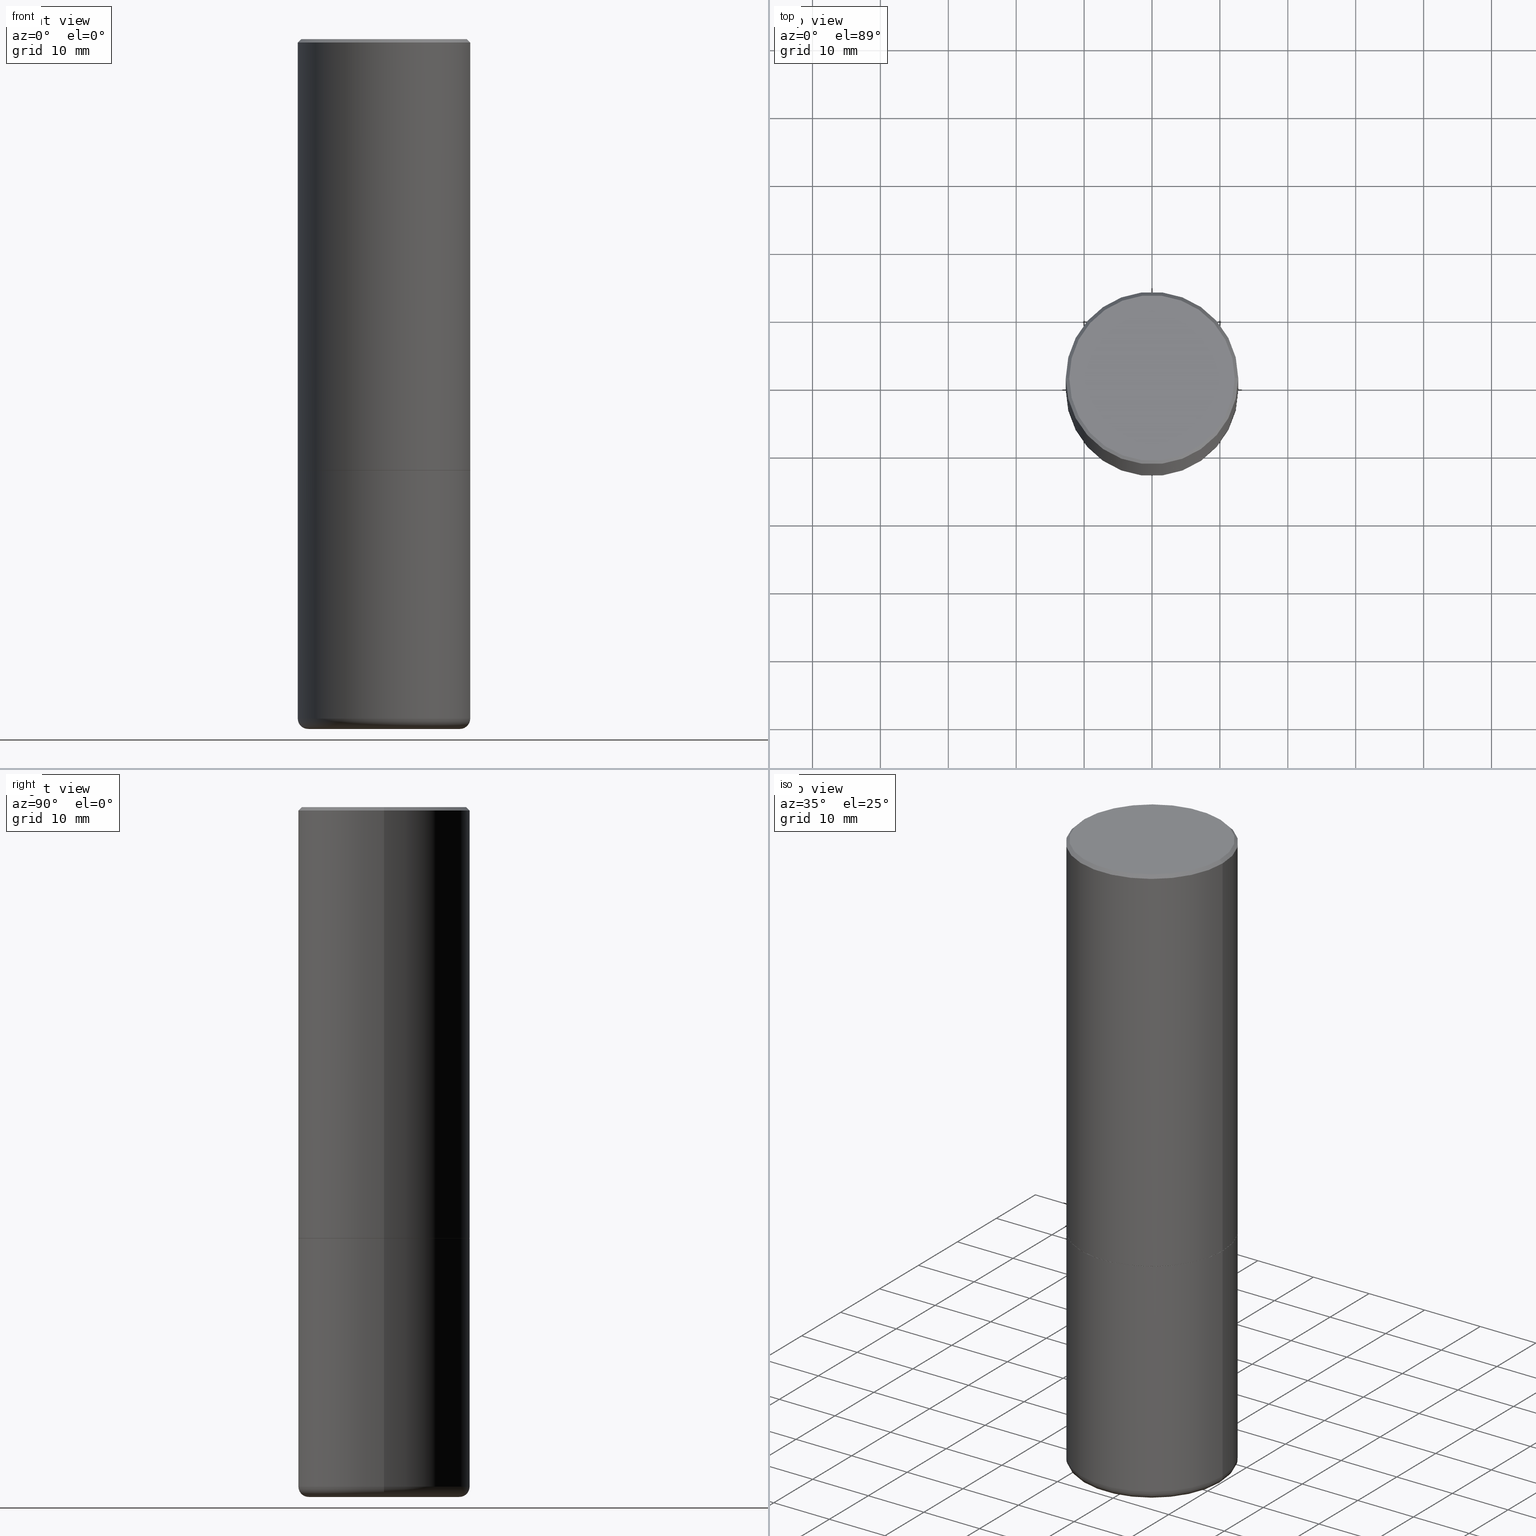
[diagram: canonical four-view strip — front | top / right | iso, engineering-drawing reading convention]
A machine part, canonical four-view strip (front | top / right | iso — engineering-drawing reading convention). The complete STEP part file that produces these views, byte-faithful:
ISO-10303-21;
HEADER;
FILE_DESCRIPTION (( 'STEP AP203' ),
    '1' );
FILE_NAME ('32589.STEP',
    '2022-04-26T19:39:01',
    ( '' ),
    ( '' ),
    'SwSTEP 2.0',
    'SolidWorks 2022',
    '' );
FILE_SCHEMA (( 'CONFIG_CONTROL_DESIGN' ));
ENDSEC;

DATA;
#1 = ORIENTED_EDGE ( 'NONE', *, *, #329, .F. ) ;
#2 = AXIS2_PLACEMENT_3D ( 'NONE', #188, #322, #219 ) ;
#3 = PERSON_AND_ORGANIZATION_ROLE ( 'design_supplier' ) ;
#4 = APPROVAL_STATUS ( 'not_yet_approved' ) ;
#5 = CARTESIAN_POINT ( 'NONE',  ( 6.113672015462842613E-29, -8.728703347107864943E-15, -2.500000000000000000 ) ) ;
#6 = AXIS2_PLACEMENT_3D ( 'NONE', #339, #144, #379 ) ;
#7 = ORIENTED_EDGE ( 'NONE', *, *, #62, .T. ) ;
#8 = AXIS2_PLACEMENT_3D ( 'NONE', #96, #296, #367 ) ;
#9 = CARTESIAN_POINT ( 'NONE',  ( 6.113672015462842613E-29, -8.728703347107864943E-15, -2.500000000000000000 ) ) ;
#10 = EDGE_LOOP ( 'NONE', ( #54, #312 ) ) ;
#11 = DIRECTION ( 'NONE',  ( -2.445468806185136597E-29, 3.491481338843145583E-15, 1.000000000000000000 ) ) ;
#12 = EDGE_CURVE ( 'NONE', #308, #184, #208, .T. ) ;
#13 = EDGE_CURVE ( 'NONE', #74, #47, #224, .T. ) ;
#14 = ORIENTED_EDGE ( 'NONE', *, *, #235, .T. ) ;
#15 = CYLINDRICAL_SURFACE ( 'NONE', #298, 0.4999999999999998335 ) ;
#16 = ADVANCED_FACE ( 'NONE', ( #394 ), #360, .F. ) ;
#17 = ORIENTED_EDGE ( 'NONE', *, *, #193, .F. ) ;
#18 = VECTOR ( 'NONE', #23, 39.37007874015748143 ) ;
#19 = DIRECTION ( 'NONE',  ( -2.445468806185136597E-29, 3.491481338843145583E-15, 1.000000000000000000 ) ) ;
#20 = DATE_TIME_ROLE ( 'classification_date' ) ;
#21 = ORIENTED_EDGE ( 'NONE', *, *, #109, .F. ) ;
#22 = DIRECTION ( 'NONE',  ( -1.000000000000000000, 6.982962677686266711E-15, 0.000000000000000000 ) ) ;
#23 = DIRECTION ( 'NONE',  ( -2.445468806185136877E-29, 3.491481338843145188E-15, 1.000000000000000000 ) ) ;
#24 = PERSON_AND_ORGANIZATION_ROLE ( 'classification_officer' ) ;
#25 = DIRECTION ( 'NONE',  ( 1.000000000000000000, -6.982962677686266711E-15, 0.000000000000000000 ) ) ;
#26 = DIRECTION ( 'NONE',  ( 2.445468806185136597E-29, -3.491481338843145583E-15, -1.000000000000000000 ) ) ;
#27 = AXIS2_PLACEMENT_3D ( 'NONE', #270, #26, #22 ) ;
#28 = DIRECTION ( 'NONE',  ( -2.445468806185136597E-29, 3.491481338843145583E-15, 1.000000000000000000 ) ) ;
#29 = CC_DESIGN_PERSON_AND_ORGANIZATION_ASSIGNMENT ( #39, #174, ( #399 ) ) ;
#30 = DIRECTION ( 'NONE',  ( 2.445468806185136597E-29, -3.491481338843145583E-15, -1.000000000000000000 ) ) ;
#31 =( NAMED_UNIT ( * ) SI_UNIT ( $, .STERADIAN. ) SOLID_ANGLE_UNIT ( ) );
#32 = CIRCLE ( 'NONE', #138, 0.5000000000000000000 ) ;
#33 = EDGE_CURVE ( 'NONE', #320, #119, #237, .T. ) ;
#34 = CARTESIAN_POINT ( 'NONE',  ( 0.000000000000000000, 0.000000000000000000, 0.000000000000000000 ) ) ;
#35 = EDGE_LOOP ( 'NONE', ( #21, #420, #154 ) ) ;
#36 = EDGE_LOOP ( 'NONE', ( #114, #411, #111, #255 ) ) ;
#37 = ADVANCED_FACE ( 'NONE', ( #141 ), #302, .T. ) ;
#38 = DIRECTION ( 'NONE',  ( 7.105427357601001859E-15, 1.000000000000000000, -3.491481338843145583E-15 ) ) ;
#39 = PERSON_AND_ORGANIZATION ( #263, #277 ) ;
#40 = DIRECTION ( 'NONE',  ( 2.438088387897960049E-29, -3.491481338843145188E-15, -1.000000000000000000 ) ) ;
#41 = CIRCLE ( 'NONE', #128, 0.4389528556137634596 ) ;
#42 =( NAMED_UNIT ( * ) PLANE_ANGLE_UNIT ( ) SI_UNIT ( $, .RADIAN. ) );
#43 = ORIENTED_EDGE ( 'NONE', *, *, #259, .T. ) ;
#44 = FACE_OUTER_BOUND ( 'NONE', #310, .T. ) ;
#45 = CARTESIAN_POINT ( 'NONE',  ( -0.4400000000000000022, -1.063004843769755357E-14, -3.939999999999999947 ) ) ;
#46 = PRODUCT_DEFINITION_SHAPE ( 'NONE', 'NONE',  #170 ) ;
#47 = VERTEX_POINT ( 'NONE', #275 ) ;
#48 = CIRCLE ( 'NONE', #245, 0.4999999999999997780 ) ;
#49 = EDGE_CURVE ( 'NONE', #390, #317, #178, .T. ) ;
#50 = CC_DESIGN_SECURITY_CLASSIFICATION ( #305, ( #399 ) ) ;
#51 = EDGE_LOOP ( 'NONE', ( #301, #43, #220, #204 ) ) ;
#52 = CARTESIAN_POINT ( 'NONE',  ( 9.781852877335900786E-29, -1.396589344920142388E-14, -3.999990861709382894 ) ) ;
#53 = EDGE_CURVE ( 'NONE', #260, #180, #403, .T. ) ;
#54 = ORIENTED_EDGE ( 'NONE', *, *, #225, .T. ) ;
#55 = DIRECTION ( 'NONE',  ( 1.000000000000000000, -6.982962677686262766E-15, 0.000000000000000000 ) ) ;
#56 = ORIENTED_EDGE ( 'NONE', *, *, #12, .F. ) ;
#57 = ADVANCED_FACE ( 'NONE', ( #416 ), #106, .F. ) ;
#58 = DIRECTION ( 'NONE',  ( -2.445468806185136597E-29, 3.491481338843145583E-15, 1.000000000000000000 ) ) ;
#59 = VECTOR ( 'NONE', #266, 39.37007874015748854 ) ;
#60 = CARTESIAN_POINT ( 'NONE',  ( 0.4999999999999997224, -3.500078625662627502E-15, -0.02000000000000011144 ) ) ;
#61 = CARTESIAN_POINT ( 'NONE',  ( 0.5000000000000000000, -1.222018468595099830E-14, -2.500000000000000000 ) ) ;
#62 = EDGE_CURVE ( 'NONE', #184, #320, #205, .T. ) ;
#63 = DIRECTION ( 'NONE',  ( -2.445468806185136597E-29, 3.491481338843145583E-15, 1.000000000000000000 ) ) ;
#64 = CC_DESIGN_APPROVAL ( #183, ( #399 ) ) ;
#65 = CARTESIAN_POINT ( 'NONE',  ( 9.635147096369438236E-29, -1.375643647504199401E-14, -3.939999999999999947 ) ) ;
#66 = CARTESIAN_POINT ( 'NONE',  ( -0.4999999999999997224, 3.421651712066268085E-15, -0.02000000000000011144 ) ) ;
#67 = AXIS2_PLACEMENT_3D ( 'NONE', #118, #91, #384 ) ;
#68 = CC_DESIGN_APPROVAL ( #267, ( #170 ) ) ;
#69 = ORIENTED_EDGE ( 'NONE', *, *, #33, .T. ) ;
#70 = APPROVAL_ROLE ( '' ) ;
#71 = PERSON_AND_ORGANIZATION_ROLE ( 'design_owner' ) ;
#72 = ORIENTED_EDGE ( 'NONE', *, *, #433, .T. ) ;
#73 = TOROIDAL_SURFACE ( 'NONE', #232, 0.4400000000000000022, 0.05999999999999975492 ) ;
#74 = VERTEX_POINT ( 'NONE', #362 ) ;
#75 = CC_DESIGN_DATE_AND_TIME_ASSIGNMENT ( #273, #375, ( #170 ) ) ;
#76 = EDGE_LOOP ( 'NONE', ( #287, #14, #413, #408 ) ) ;
#77 = CARTESIAN_POINT ( 'NONE',  ( -0.4999999999999998335, 3.552713678800499746E-15, -2.459467545127452330E-29 ) ) ;
#78 = DIRECTION ( 'NONE',  ( 1.000000000000000000, -6.982962677686267499E-15, 4.876176775795936353E-29 ) ) ;
#79 = EDGE_CURVE ( 'NONE', #187, #315, #32, .T. ) ;
#80 = EDGE_LOOP ( 'NONE', ( #201, #157, #17, #149 ) ) ;
#81 = CONICAL_SURFACE ( 'NONE', #409, 0.4989999999999999991, 0.7853981633978239785 ) ;
#82 = CARTESIAN_POINT ( 'NONE',  ( 0.5000000000000000000, -1.221669320461215371E-14, -2.499000000000000110 ) ) ;
#83 = EDGE_LOOP ( 'NONE', ( #252, #389, #72, #122 ) ) ;
#84 = CARTESIAN_POINT ( 'NONE',  ( 0.000000000000000000, 0.000000000000000000, 0.000000000000000000 ) ) ;
#85 = EDGE_CURVE ( 'NONE', #180, #260, #116, .T. ) ;
#86 = DIRECTION ( 'NONE',  ( 0.9998476951563914916, -6.920387862090555568E-15, -0.01745240643727472007 ) ) ;
#87 = CARTESIAN_POINT ( 'NONE',  ( -0.4989999999999999991, -5.183095095664963444E-15, -2.499999999999999556 ) ) ;
#88 = EDGE_CURVE ( 'NONE', #47, #317, #333, .T. ) ;
#89 = CARTESIAN_POINT ( 'NONE',  ( 3.351822085289405181E-15, 0.4799999999999996492, -1.669508273909558064E-15 ) ) ;
#90 = DIRECTION ( 'NONE',  ( -2.445468806185136597E-29, 3.491481338843145583E-15, 1.000000000000000000 ) ) ;
#91 = DIRECTION ( 'NONE',  ( -2.445468806185136597E-29, 3.491481338843145583E-15, 1.000000000000000000 ) ) ;
#92 = APPROVAL_PERSON_ORGANIZATION ( #368, #267, #168 ) ;
#93 = CARTESIAN_POINT ( 'NONE',  ( 0.4989999999999999991, -1.221320172327330913E-14, -2.499999999999999556 ) ) ;
#94 = CC_DESIGN_DATE_AND_TIME_ASSIGNMENT ( #189, #20, ( #305 ) ) ;
#95 = CC_DESIGN_PERSON_AND_ORGANIZATION_ASSIGNMENT ( #271, #307, ( #170 ) ) ;
#96 = CARTESIAN_POINT ( 'NONE',  ( -3.131554243005659264E-46, 4.471029511141341874E-32, 1.280553747030123384E-17 ) ) ;
#97 = CIRCLE ( 'NONE', #8, 0.4799999999999996492 ) ;
#98 = DIRECTION ( 'NONE',  ( 1.000000000000000000, -6.982962677686265922E-15, 0.000000000000000000 ) ) ;
#99 =( GEOMETRIC_REPRESENTATION_CONTEXT ( 3 ) GLOBAL_UNCERTAINTY_ASSIGNED_CONTEXT ( ( #330 ) ) GLOBAL_UNIT_ASSIGNED_CONTEXT ( ( #406, #42, #31 ) ) REPRESENTATION_CONTEXT ( 'NONE', 'WORKASPACE' ) );
#100 = COORDINATED_UNIVERSAL_TIME_OFFSET ( 5, 0, .BEHIND. ) ;
#101 = EDGE_CURVE ( 'NONE', #280, #315, #353, .T. ) ;
#102 = EDGE_LOOP ( 'NONE', ( #383, #371, #171, #214 ) ) ;
#103 = CARTESIAN_POINT ( 'NONE',  ( -0.4999999999999998335, 3.552713678800499746E-15, -2.459467545127452330E-29 ) ) ;
#104 = APPLICATION_PROTOCOL_DEFINITION ( 'international standard', 'config_control_design', 1994, #354 ) ;
#105 = DATE_AND_TIME ( #246, #299 ) ;
#106 = PLANE ( 'NONE',  #397 ) ;
#107 = AXIS2_PLACEMENT_3D ( 'NONE', #309, #142, #238 ) ;
#108 = TOROIDAL_SURFACE ( 'NONE', #292, 0.4400000000000000022, 0.05999999999999975492 ) ;
#109 = EDGE_CURVE ( 'NONE', #308, #320, #262, .T. ) ;
#110 = APPLICATION_CONTEXT ( 'configuration controlled 3d designs of mechanical parts and assemblies' ) ;
#111 = ORIENTED_EDGE ( 'NONE', *, *, #88, .T. ) ;
#112 = CARTESIAN_POINT ( 'NONE',  ( -0.5000000000000000000, -7.689856232274430126E-15, -2.500000000000000000 ) ) ;
#113 = EDGE_CURVE ( 'NONE', #180, #390, #253, .T. ) ;
#114 = ORIENTED_EDGE ( 'NONE', *, *, #412, .F. ) ;
#115 = CARTESIAN_POINT ( 'NONE',  ( -0.4799999999999996492, 3.386736898677836830E-15, 1.280553747027767124E-17 ) ) ;
#116 = CIRCLE ( 'NONE', #2, 0.4989999999999999991 ) ;
#117 = VERTEX_POINT ( 'NONE', #115 ) ;
#118 = CARTESIAN_POINT ( 'NONE',  ( 4.890937612370301184E-31, -6.982962677686329819E-17, -0.02000000000000011144 ) ) ;
#119 = VERTEX_POINT ( 'NONE', #425 ) ;
#120 = CARTESIAN_POINT ( 'NONE',  ( 9.635147096369438236E-29, -1.375643647504199401E-14, -3.939999999999999947 ) ) ;
#121 = CARTESIAN_POINT ( 'NONE',  ( 6.113672015462842613E-29, -8.728703347107864943E-15, -2.500000000000000000 ) ) ;
#122 = ORIENTED_EDGE ( 'NONE', *, *, #366, .F. ) ;
#123 = DIRECTION ( 'NONE',  ( 1.000000000000000000, -6.982962677686265922E-15, 0.000000000000000000 ) ) ;
#124 = CARTESIAN_POINT ( 'NONE',  ( 0.4999999999999998335, -3.491481338843132566E-15, 2.438088387897967336E-29 ) ) ;
#125 = PERSON_AND_ORGANIZATION ( #263, #277 ) ;
#126 = VECTOR ( 'NONE', #286, 39.37007874015747433 ) ;
#127 = DIRECTION ( 'NONE',  ( -1.000000000000000000, 6.982962677686265922E-15, 0.000000000000000000 ) ) ;
#128 = AXIS2_PLACEMENT_3D ( 'NONE', #363, #63, #123 ) ;
#129 = FACE_OUTER_BOUND ( 'NONE', #278, .T. ) ;
#130 = FACE_OUTER_BOUND ( 'NONE', #415, .T. ) ;
#131 = FACE_OUTER_BOUND ( 'NONE', #36, .T. ) ;
#132 = AXIS2_PLACEMENT_3D ( 'NONE', #89, #40, #342 ) ;
#133 = AXIS2_PLACEMENT_3D ( 'NONE', #120, #218, #391 ) ;
#134 = EDGE_CURVE ( 'NONE', #317, #47, #244, .T. ) ;
#135 = DATE_AND_TIME ( #337, #386 ) ;
#136 = VERTEX_POINT ( 'NONE', #82 ) ;
#137 = APPROVAL_DATE_TIME ( #135, #267 ) ;
#138 = AXIS2_PLACEMENT_3D ( 'NONE', #121, #11, #256 ) ;
#139 = CC_DESIGN_PERSON_AND_ORGANIZATION_ASSIGNMENT ( #236, #71, ( #211 ) ) ;
#140 = CONICAL_SURFACE ( 'NONE', #369, 0.4989999999999999991, 0.7853981633978239785 ) ;
#141 = FACE_OUTER_BOUND ( 'NONE', #356, .T. ) ;
#142 = DIRECTION ( 'NONE',  ( -2.445468806185136597E-29, 3.491481338843145583E-15, 1.000000000000000000 ) ) ;
#143 = DIRECTION ( 'NONE',  ( -2.445468806185136877E-29, 3.491481338843145188E-15, 1.000000000000000000 ) ) ;
#144 = DIRECTION ( 'NONE',  ( -2.445468806185136597E-29, 3.491481338843145583E-15, 1.000000000000000000 ) ) ;
#145 = ADVANCED_FACE ( 'NONE', ( #396 ), #216, .T. ) ;
#146 = VECTOR ( 'NONE', #161, 39.37007874015748143 ) ;
#147 = EDGE_LOOP ( 'NONE', ( #7, #69, #380, #247 ) ) ;
#148 = FACE_OUTER_BOUND ( 'NONE', #51, .T. ) ;
#149 = ORIENTED_EDGE ( 'NONE', *, *, #433, .F. ) ;
#150 = FACE_OUTER_BOUND ( 'NONE', #430, .T. ) ;
#151 = ORIENTED_EDGE ( 'NONE', *, *, #49, .F. ) ;
#152 = CARTESIAN_POINT ( 'NONE',  ( 3.491481338843194098E-15, 0.4999999999999912292, -2.500000000000001776 ) ) ;
#153 = CIRCLE ( 'NONE', #284, 0.5000000000000000000 ) ;
#154 = ORIENTED_EDGE ( 'NONE', *, *, #259, .F. ) ;
#155 = CONICAL_SURFACE ( 'NONE', #377, 2255.510300424736670, 1.553343034274962120 ) ;
#156 = CARTESIAN_POINT ( 'NONE',  ( -1.611404890591303157E-18, -1.393914189167928133E-14, -3.992328911114222390 ) ) ;
#157 = ORIENTED_EDGE ( 'NONE', *, *, #113, .T. ) ;
#158 = LINE ( 'NONE', #288, #146 ) ;
#159 = CARTESIAN_POINT ( 'NONE',  ( -0.4989999999999999991, -5.177796641316741831E-15, -2.499999999999999556 ) ) ;
#160 = APPROVAL ( #4, 'UNSPECIFIED' ) ;
#161 = DIRECTION ( 'NONE',  ( -0.7071067811865464625, 2.468850131082245228E-15, -0.7071067811865486830 ) ) ;
#162 = SECURITY_CLASSIFICATION_LEVEL ( 'unclassified' ) ;
#163 = DIRECTION ( 'NONE',  ( 1.000000000000000000, -6.982962677686267499E-15, 4.876036955247132767E-29 ) ) ;
#164 = AXIS2_PLACEMENT_3D ( 'NONE', #5, #352, #419 ) ;
#165 = DIRECTION ( 'NONE',  ( -2.445468806185136597E-29, 3.491481338843145583E-15, 1.000000000000000000 ) ) ;
#166 = CARTESIAN_POINT ( 'NONE',  ( 4.890937612370301184E-31, -6.982962677686329819E-17, -0.02000000000000011144 ) ) ;
#167 = EDGE_CURVE ( 'NONE', #184, #280, #230, .T. ) ;
#168 = APPROVAL_ROLE ( '' ) ;
#169 = ORIENTED_EDGE ( 'NONE', *, *, #325, .F. ) ;
#170 = PRODUCT_DEFINITION ( 'UNKNOWN', '', #399, #439 ) ;
#171 = ORIENTED_EDGE ( 'NONE', *, *, #101, .T. ) ;
#172 = ADVANCED_FACE ( 'NONE', ( #185 ), #15, .T. ) ;
#173 = ADVANCED_FACE ( 'NONE', ( #148 ), #108, .T. ) ;
#174 = PERSON_AND_ORGANIZATION_ROLE ( 'creator' ) ;
#175 = DIRECTION ( 'NONE',  ( -2.445468806185136877E-29, 3.491481338843145188E-15, 1.000000000000000000 ) ) ;
#176 = ORIENTED_EDGE ( 'NONE', *, *, #134, .T. ) ;
#177 = DIRECTION ( 'NONE',  ( 1.000000000000000000, -6.982962677686269077E-15, 0.000000000000000000 ) ) ;
#178 = LINE ( 'NONE', #103, #291 ) ;
#179 = LOCAL_TIME ( 15, 39, 1.000000000000000000, #283 ) ;
#180 = VERTEX_POINT ( 'NONE', #159 ) ;
#181 = ORIENTED_EDGE ( 'NONE', *, *, #325, .T. ) ;
#182 = DIRECTION ( 'NONE',  ( -6.982962677686266711E-15, -1.000000000000000000, 3.491481338843145583E-15 ) ) ;
#183 = APPROVAL ( #240, 'UNSPECIFIED' ) ;
#184 = VERTEX_POINT ( 'NONE', #210 ) ;
#185 = FACE_OUTER_BOUND ( 'NONE', #76, .T. ) ;
#186 = AXIS2_PLACEMENT_3D ( 'NONE', #249, #248, #209 ) ;
#187 = VERTEX_POINT ( 'NONE', #112 ) ;
#188 = CARTESIAN_POINT ( 'NONE',  ( 6.113672015462840371E-29, -8.728703347107863365E-15, -2.499999999999999556 ) ) ;
#189 = DATE_AND_TIME ( #341, #179 ) ;
#190 = DIRECTION ( 'NONE',  ( 0.7071067811865464625, -7.319954787623252890E-15, -0.7071067811865486830 ) ) ;
#191 = DIRECTION ( 'NONE',  ( -2.445468806185136597E-29, 3.491481338843145583E-15, 1.000000000000000000 ) ) ;
#192 = DIRECTION ( 'NONE',  ( 1.000000000000000000, -6.982962677686265922E-15, 4.883557194083112340E-29 ) ) ;
#193 = EDGE_CURVE ( 'NONE', #136, #390, #404, .T. ) ;
#194 = CARTESIAN_POINT ( 'NONE',  ( 0.4999999999999998335, -3.491481338843132566E-15, 2.438088387897967336E-29 ) ) ;
#195 = AXIS2_PLACEMENT_3D ( 'NONE', #52, #58, #289 ) ;
#196 = LINE ( 'NONE', #194, #358 ) ;
#197 = CONICAL_SURFACE ( 'NONE', #27, 0.4999999999999997224, 0.7853981633974467247 ) ;
#198 = CARTESIAN_POINT ( 'NONE',  ( -0.4389528556137630710, -1.090070204118670657E-14, -3.999990861709382894 ) ) ;
#199 = CALENDAR_DATE ( 2022, 26, 4 ) ;
#200 = CIRCLE ( 'NONE', #340, 0.4799999999999996492 ) ;
#201 = ORIENTED_EDGE ( 'NONE', *, *, #53, .T. ) ;
#202 = COORDINATED_UNIVERSAL_TIME_OFFSET ( 5, 0, .BEHIND. ) ;
#203 = LENGTH_MEASURE_WITH_UNIT ( LENGTH_MEASURE( 0.02539999999999999897 ), #229 );
#204 = ORIENTED_EDGE ( 'NONE', *, *, #372, .F. ) ;
#205 = CIRCLE ( 'NONE', #195, 0.4389528556137634596 ) ;
#206 = CONICAL_SURFACE ( 'NONE', #418, 2255.510300424736670, 1.553343034274962120 ) ;
#207 = ORIENTED_EDGE ( 'NONE', *, *, #13, .F. ) ;
#208 = LINE ( 'NONE', #344, #222 ) ;
#209 = DIRECTION ( 'NONE',  ( 1.000000000000000000, -6.982962677686265133E-15, 0.000000000000000000 ) ) ;
#210 = CARTESIAN_POINT ( 'NONE',  ( 0.4389528556137630710, -1.697732863625574306E-14, -3.999990861709382894 ) ) ;
#211 = PRODUCT ( '32589', '32589', '', ( #374 ) ) ;
#212 = AXIS2_PLACEMENT_3D ( 'NONE', #328, #28, #321 ) ;
#213 = ADVANCED_FACE ( 'NONE', ( #44 ), #349, .T. ) ;
#214 = ORIENTED_EDGE ( 'NONE', *, *, #79, .F. ) ;
#215 = EDGE_CURVE ( 'NONE', #280, #119, #338, .T. ) ;
#216 = CYLINDRICAL_SURFACE ( 'NONE', #254, 0.4999999999999998335 ) ;
#217 = ORIENTED_EDGE ( 'NONE', *, *, #412, .T. ) ;
#218 = DIRECTION ( 'NONE',  ( -2.445468806185136597E-29, 3.491481338843145583E-15, 1.000000000000000000 ) ) ;
#219 = DIRECTION ( 'NONE',  ( 1.000000000000000000, -6.982962677686266711E-15, 0.000000000000000000 ) ) ;
#220 = ORIENTED_EDGE ( 'NONE', *, *, #167, .T. ) ;
#221 = PLANE ( 'NONE',  #164 ) ;
#222 = VECTOR ( 'NONE', #86, 39.37007874015747433 ) ;
#223 = AXIS2_PLACEMENT_3D ( 'NONE', #34, #414, #274 ) ;
#224 = LINE ( 'NONE', #60, #326 ) ;
#225 = EDGE_CURVE ( 'NONE', #315, #187, #153, .T. ) ;
#226 = FACE_OUTER_BOUND ( 'NONE', #35, .T. ) ;
#227 = DIRECTION ( 'NONE',  ( -2.445468806185136597E-29, 3.491481338843145583E-15, 1.000000000000000000 ) ) ;
#228 = CARTESIAN_POINT ( 'NONE',  ( 9.761990578139870548E-29, -1.394075329656997142E-14, -3.992328911114222390 ) ) ;
#229 =( LENGTH_UNIT ( ) NAMED_UNIT ( * ) SI_UNIT ( $, .METRE. ) );
#230 = CIRCLE ( 'NONE', #441, 0.05999999999999976880 ) ;
#231 = FACE_OUTER_BOUND ( 'NONE', #80, .T. ) ;
#232 = AXIS2_PLACEMENT_3D ( 'NONE', #261, #191, #295 ) ;
#233 = DIRECTION ( 'NONE',  ( -2.445468806185136877E-29, 3.491481338843145188E-15, 1.000000000000000000 ) ) ;
#234 = MANIFOLD_SOLID_BREP ( 'Body-Move/Copy2[1]', #435 ) ;
#235 = EDGE_CURVE ( 'NONE', #119, #187, #381, .T. ) ;
#236 = PERSON_AND_ORGANIZATION ( #263, #277 ) ;
#237 = CIRCLE ( 'NONE', #297, 0.05999999999999976880 ) ;
#238 = DIRECTION ( 'NONE',  ( 1.000000000000000000, -6.982962677686266711E-15, 0.000000000000000000 ) ) ;
#239 = VECTOR ( 'NONE', #143, 39.37007874015748143 ) ;
#240 = APPROVAL_STATUS ( 'not_yet_approved' ) ;
#241 = DIMENSIONAL_EXPONENTS ( 1.000000000000000000, 0.000000000000000000, 0.000000000000000000, 0.000000000000000000, 0.000000000000000000, 0.000000000000000000, 0.000000000000000000 ) ;
#242 = CALENDAR_DATE ( 2022, 26, 4 ) ;
#243 = COORDINATED_UNIVERSAL_TIME_OFFSET ( 5, 0, .BEHIND. ) ;
#244 = CIRCLE ( 'NONE', #67, 0.4999999999999997224 ) ;
#245 = AXIS2_PLACEMENT_3D ( 'NONE', #65, #165, #98 ) ;
#246 = CALENDAR_DATE ( 2022, 26, 4 ) ;
#247 = ORIENTED_EDGE ( 'NONE', *, *, #167, .F. ) ;
#248 = DIRECTION ( 'NONE',  ( -2.445468806185136597E-29, 3.491481338843145583E-15, 1.000000000000000000 ) ) ;
#249 = CARTESIAN_POINT ( 'NONE',  ( 6.111226546656657010E-29, -8.725211865769021935E-15, -2.499000000000000110 ) ) ;
#250 = ADVANCED_FACE ( 'NONE', ( #150 ), #221, .F. ) ;
#251 = ADVANCED_FACE ( 'NONE', ( #361 ), #73, .T. ) ;
#252 = ORIENTED_EDGE ( 'NONE', *, *, #113, .F. ) ;
#253 = LINE ( 'NONE', #87, #426 ) ;
#254 = AXIS2_PLACEMENT_3D ( 'NONE', #350, #429, #316 ) ;
#255 = ORIENTED_EDGE ( 'NONE', *, *, #401, .F. ) ;
#256 = DIRECTION ( 'NONE',  ( 1.000000000000000000, -6.982962677686269077E-15, 0.000000000000000000 ) ) ;
#257 = EDGE_LOOP ( 'NONE', ( #282, #217 ) ) ;
#258 = CARTESIAN_POINT ( 'NONE',  ( 0.4400000000000000022, -1.682894005322395074E-14, -3.939999999999999947 ) ) ;
#259 = EDGE_CURVE ( 'NONE', #320, #184, #41, .T. ) ;
#260 = VERTEX_POINT ( 'NONE', #438 ) ;
#261 = CARTESIAN_POINT ( 'NONE',  ( 9.635147096369438236E-29, -1.375643647504199401E-14, -3.939999999999999947 ) ) ;
#262 = LINE ( 'NONE', #156, #126 ) ;
#263 = PERSON ( 'UNSPECIFIED', 'UNSPECIFIED', 'UNSPECIFIED', ('UNSPECIFIED'), ('UNSPECIFIED'), ('UNSPECIFIED') ) ;
#264 = APPROVAL_PERSON_ORGANIZATION ( #410, #183, #70 ) ;
#265 = CARTESIAN_POINT ( 'NONE',  ( 0.4999999999999997780, -1.724791781388512421E-14, -3.939999999999999947 ) ) ;
#266 = DIRECTION ( 'NONE',  ( 0.7071067811868130271, -2.468850131085038979E-15, 0.7071067811862817853 ) ) ;
#267 = APPROVAL ( #370, 'UNSPECIFIED' ) ;
#268 = CARTESIAN_POINT ( 'NONE',  ( -0.5000000000000000000, -8.448070674724411945E-16, -2.499000000000000110 ) ) ;
#269 = CIRCLE ( 'NONE', #212, 0.5000000000000000000 ) ;
#270 = CARTESIAN_POINT ( 'NONE',  ( 4.890937612370301184E-31, -6.982962677686329819E-17, -0.02000000000000011144 ) ) ;
#271 = PERSON_AND_ORGANIZATION ( #263, #277 ) ;
#272 = ORIENTED_EDGE ( 'NONE', *, *, #88, .F. ) ;
#273 = DATE_AND_TIME ( #242, #327 ) ;
#274 = DIRECTION ( 'NONE',  ( 1.000000000000000000, 0.000000000000000000, 0.000000000000000000 ) ) ;
#275 = CARTESIAN_POINT ( 'NONE',  ( 0.4999999999999997224, -3.500078625662627502E-15, -0.02000000000000011144 ) ) ;
#276 = ORIENTED_EDGE ( 'NONE', *, *, #62, .F. ) ;
#277 = ORGANIZATION ( 'UNSPECIFIED', 'UNSPECIFIED', '' ) ;
#278 = EDGE_LOOP ( 'NONE', ( #207, #1, #351, #176 ) ) ;
#279 = CC_DESIGN_PERSON_AND_ORGANIZATION_ASSIGNMENT ( #359, #24, ( #305 ) ) ;
#280 = VERTEX_POINT ( 'NONE', #265 ) ;
#281 = DIRECTION ( 'NONE',  ( 1.000000000000000000, -6.982962677686266711E-15, 0.000000000000000000 ) ) ;
#282 = ORIENTED_EDGE ( 'NONE', *, *, #329, .T. ) ;
#283 = COORDINATED_UNIVERSAL_TIME_OFFSET ( 5, 0, .BEHIND. ) ;
#284 = AXIS2_PLACEMENT_3D ( 'NONE', #9, #345, #177 ) ;
#285 = ORIENTED_EDGE ( 'NONE', *, *, #85, .F. ) ;
#286 = DIRECTION ( 'NONE',  ( -0.9998476951563914916, 6.920964387254067043E-15, -0.01745240643727472007 ) ) ;
#287 = ORIENTED_EDGE ( 'NONE', *, *, #215, .T. ) ;
#288 = CARTESIAN_POINT ( 'NONE',  ( -0.4999999999999997224, 3.421651712066268085E-15, -0.02000000000000011144 ) ) ;
#289 = DIRECTION ( 'NONE',  ( 1.000000000000000000, -6.982962677686265922E-15, 0.000000000000000000 ) ) ;
#290 = CARTESIAN_POINT ( 'NONE',  ( 1.060414152722686595E-27, -1.513990371217243745E-13, -43.36240765127170960 ) ) ;
#291 = VECTOR ( 'NONE', #175, 39.37007874015748143 ) ;
#292 = AXIS2_PLACEMENT_3D ( 'NONE', #432, #227, #192 ) ;
#293 = LINE ( 'NONE', #93, #59 ) ;
#294 = ADVANCED_FACE ( 'NONE', ( #129 ), #442, .T. ) ;
#295 = DIRECTION ( 'NONE',  ( 1.000000000000000000, -6.982962677686265922E-15, 4.883557194083112340E-29 ) ) ;
#296 = DIRECTION ( 'NONE',  ( -2.445468806185136597E-29, 3.491481338843145583E-15, 1.000000000000000000 ) ) ;
#297 = AXIS2_PLACEMENT_3D ( 'NONE', #45, #38, #304 ) ;
#298 = AXIS2_PLACEMENT_3D ( 'NONE', #318, #382, #78 ) ;
#299 = LOCAL_TIME ( 15, 39, 1.000000000000000000, #243 ) ;
#300 = ADVANCED_FACE ( 'NONE', ( #323 ), #81, .T. ) ;
#301 = ORIENTED_EDGE ( 'NONE', *, *, #33, .F. ) ;
#302 = CYLINDRICAL_SURFACE ( 'NONE', #6, 0.4999999999999998335 ) ;
#303 = PERSON_AND_ORGANIZATION ( #263, #277 ) ;
#304 = DIRECTION ( 'NONE',  ( -1.000000000000000000, 7.105427357600985293E-15, 0.000000000000000000 ) ) ;
#305 = SECURITY_CLASSIFICATION ( '', '', #162 ) ;
#306 = PRODUCT_RELATED_PRODUCT_CATEGORY ( 'detail', '', ( #211 ) ) ;
#307 = PERSON_AND_ORGANIZATION_ROLE ( 'creator' ) ;
#308 = VERTEX_POINT ( 'NONE', #228 ) ;
#309 = CARTESIAN_POINT ( 'NONE',  ( 6.113672015462840371E-29, -8.728703347107863365E-15, -2.499999999999999556 ) ) ;
#310 = EDGE_LOOP ( 'NONE', ( #151, #348, #181, #335 ) ) ;
#311 = LOCAL_TIME ( 15, 39, 1.000000000000000000, #202 ) ;
#312 = ORIENTED_EDGE ( 'NONE', *, *, #79, .T. ) ;
#313 = DIRECTION ( 'NONE',  ( 2.438088387897960049E-29, -3.491481338843145188E-15, -1.000000000000000000 ) ) ;
#314 = ADVANCED_FACE ( 'NONE', ( #231 ), #140, .T. ) ;
#315 = VERTEX_POINT ( 'NONE', #61 ) ;
#316 = DIRECTION ( 'NONE',  ( 1.000000000000000000, -6.982962677686267499E-15, 4.876176775795936353E-29 ) ) ;
#317 = VERTEX_POINT ( 'NONE', #66 ) ;
#318 = CARTESIAN_POINT ( 'NONE',  ( 0.000000000000000000, 0.000000000000000000, 0.000000000000000000 ) ) ;
#319 = ADVANCED_BREP_SHAPE_REPRESENTATION ( '32589', ( #234, #378, #223 ), #99 ) ;
#320 = VERTEX_POINT ( 'NONE', #198 ) ;
#321 = DIRECTION ( 'NONE',  ( 1.000000000000000000, -6.982962677686265133E-15, 0.000000000000000000 ) ) ;
#322 = DIRECTION ( 'NONE',  ( -2.445468806185136597E-29, 3.491481338843145583E-15, 1.000000000000000000 ) ) ;
#323 = FACE_OUTER_BOUND ( 'NONE', #83, .T. ) ;
#324 = DIRECTION ( 'NONE',  ( -1.000000000000000000, 6.982962677686265922E-15, 0.000000000000000000 ) ) ;
#325 = EDGE_CURVE ( 'NONE', #136, #47, #196, .T. ) ;
#326 = VECTOR ( 'NONE', #190, 39.37007874015748143 ) ;
#327 = LOCAL_TIME ( 15, 39, 1.000000000000000000, #100 ) ;
#328 = CARTESIAN_POINT ( 'NONE',  ( 6.111226546656657010E-29, -8.725211865769021935E-15, -2.499000000000000110 ) ) ;
#329 = EDGE_CURVE ( 'NONE', #117, #74, #97, .T. ) ;
#330 = UNCERTAINTY_MEASURE_WITH_UNIT (LENGTH_MEASURE( 1.000000000000000082E-05 ), #406, 'distance_accuracy_value', 'NONE');
#331 = DIRECTION ( 'NONE',  ( 1.000000000000000000, -6.982962677686266711E-15, 0.000000000000000000 ) ) ;
#332 = DATE_AND_TIME ( #199, #311 ) ;
#333 = CIRCLE ( 'NONE', #385, 0.4999999999999997224 ) ;
#334 = AXIS2_PLACEMENT_3D ( 'NONE', #166, #402, #405 ) ;
#335 = ORIENTED_EDGE ( 'NONE', *, *, #134, .F. ) ;
#336 = APPROVAL_DATE_TIME ( #332, #183 ) ;
#337 = CALENDAR_DATE ( 2022, 26, 4 ) ;
#338 = CIRCLE ( 'NONE', #133, 0.4999999999999997780 ) ;
#339 = CARTESIAN_POINT ( 'NONE',  ( 0.000000000000000000, 0.000000000000000000, 0.000000000000000000 ) ) ;
#340 = AXIS2_PLACEMENT_3D ( 'NONE', #431, #90, #163 ) ;
#341 = CALENDAR_DATE ( 2022, 26, 4 ) ;
#342 = DIRECTION ( 'NONE',  ( -1.000000000000000000, 6.982962677686265922E-15, -4.876176775795935793E-29 ) ) ;
#343 = ORIENTED_EDGE ( 'NONE', *, *, #53, .F. ) ;
#344 = CARTESIAN_POINT ( 'NONE',  ( 1.611404890786565683E-18, -1.393914189167928133E-14, -3.992328911114222390 ) ) ;
#345 = DIRECTION ( 'NONE',  ( -2.445468806185136597E-29, 3.491481338843145583E-15, 1.000000000000000000 ) ) ;
#346 = CLOSED_SHELL ( 'NONE', ( #314, #37, #398, #294, #213, #300, #250, #16 ) ) ;
#347 = AXIS2_PLACEMENT_3D ( 'NONE', #84, #424, #428 ) ;
#348 = ORIENTED_EDGE ( 'NONE', *, *, #366, .T. ) ;
#349 = CYLINDRICAL_SURFACE ( 'NONE', #347, 0.4999999999999998335 ) ;
#350 = CARTESIAN_POINT ( 'NONE',  ( 0.000000000000000000, 0.000000000000000000, 0.000000000000000000 ) ) ;
#351 = ORIENTED_EDGE ( 'NONE', *, *, #401, .T. ) ;
#352 = DIRECTION ( 'NONE',  ( -2.438088387897960049E-29, 3.491481338843145188E-15, 1.000000000000000000 ) ) ;
#353 = LINE ( 'NONE', #124, #18 ) ;
#354 = APPLICATION_CONTEXT ( 'configuration controlled 3d designs of mechanical parts and assemblies' ) ;
#355 = APPROVAL_ROLE ( '' ) ;
#356 = EDGE_LOOP ( 'NONE', ( #421, #427, #272, #169 ) ) ;
#357 = DIRECTION ( 'NONE',  ( -1.000000000000000000, 6.982962677686265922E-15, -4.876176775795935793E-29 ) ) ;
#358 = VECTOR ( 'NONE', #233, 39.37007874015748143 ) ;
#359 = PERSON_AND_ORGANIZATION ( #263, #277 ) ;
#360 = PLANE ( 'NONE',  #132 ) ;
#361 = FACE_OUTER_BOUND ( 'NONE', #147, .T. ) ;
#362 = CARTESIAN_POINT ( 'NONE',  ( 0.4799999999999996492, -3.396558832296480127E-15, 1.280553747032483033E-17 ) ) ;
#363 = CARTESIAN_POINT ( 'NONE',  ( 9.781852877335900786E-29, -1.396589344920142388E-14, -3.999990861709382894 ) ) ;
#364 = ADVANCED_FACE ( 'NONE', ( #130 ), #206, .F. ) ;
#365 = CARTESIAN_POINT ( 'NONE',  ( 1.060414152722686595E-27, -1.513990371217243745E-13, -43.36240765127170960 ) ) ;
#366 = EDGE_CURVE ( 'NONE', #390, #136, #269, .T. ) ;
#367 = DIRECTION ( 'NONE',  ( 1.000000000000000000, -6.982962677686267499E-15, 4.876036955247132767E-29 ) ) ;
#368 = PERSON_AND_ORGANIZATION ( #263, #277 ) ;
#369 = AXIS2_PLACEMENT_3D ( 'NONE', #400, #440, #25 ) ;
#370 = APPROVAL_STATUS ( 'not_yet_approved' ) ;
#371 = ORIENTED_EDGE ( 'NONE', *, *, #372, .T. ) ;
#372 = EDGE_CURVE ( 'NONE', #119, #280, #48, .T. ) ;
#373 = APPLICATION_PROTOCOL_DEFINITION ( 'international standard', 'config_control_design', 1994, #110 ) ;
#374 = MECHANICAL_CONTEXT ( 'NONE', #110, 'mechanical' ) ;
#375 = DATE_TIME_ROLE ( 'creation_date' ) ;
#376 = SHAPE_DEFINITION_REPRESENTATION ( #46, #319 ) ;
#377 = AXIS2_PLACEMENT_3D ( 'NONE', #290, #434, #127 ) ;
#378 = MANIFOLD_SOLID_BREP ( 'Body-Move/Copy2[2]', #346 ) ;
#379 = DIRECTION ( 'NONE',  ( 1.000000000000000000, -6.982962677686267499E-15, 4.876176775795936353E-29 ) ) ;
#380 = ORIENTED_EDGE ( 'NONE', *, *, #215, .F. ) ;
#381 = LINE ( 'NONE', #77, #239 ) ;
#382 = DIRECTION ( 'NONE',  ( -2.445468806185136597E-29, 3.491481338843145583E-15, 1.000000000000000000 ) ) ;
#383 = ORIENTED_EDGE ( 'NONE', *, *, #235, .F. ) ;
#384 = DIRECTION ( 'NONE',  ( 1.000000000000000000, -6.982962677686266711E-15, 0.000000000000000000 ) ) ;
#385 = AXIS2_PLACEMENT_3D ( 'NONE', #422, #19, #281 ) ;
#386 = LOCAL_TIME ( 15, 39, 1.000000000000000000, #407 ) ;
#387 = CC_DESIGN_APPROVAL ( #160, ( #305 ) ) ;
#388 = CC_DESIGN_PERSON_AND_ORGANIZATION_ASSIGNMENT ( #303, #3, ( #399 ) ) ;
#389 = ORIENTED_EDGE ( 'NONE', *, *, #85, .T. ) ;
#390 = VERTEX_POINT ( 'NONE', #268 ) ;
#391 = DIRECTION ( 'NONE',  ( 1.000000000000000000, -6.982962677686265922E-15, 0.000000000000000000 ) ) ;
#392 = DIRECTION ( 'NONE',  ( -0.7071067811868130271, 7.493145998871311837E-15, 0.7071067811862817853 ) ) ;
#393 = APPROVAL_DATE_TIME ( #105, #160 ) ;
#394 = FACE_OUTER_BOUND ( 'NONE', #257, .T. ) ;
#395 = CARTESIAN_POINT ( 'NONE',  ( 6.113672015462840371E-29, -8.728703347107863365E-15, -2.499999999999999556 ) ) ;
#396 = FACE_OUTER_BOUND ( 'NONE', #102, .T. ) ;
#397 = AXIS2_PLACEMENT_3D ( 'NONE', #152, #313, #357 ) ;
#398 = ADVANCED_FACE ( 'NONE', ( #131 ), #197, .T. ) ;
#399 = PRODUCT_DEFINITION_FORMATION_WITH_SPECIFIED_SOURCE ( 'ANY', '', #211, .NOT_KNOWN. ) ;
#400 = CARTESIAN_POINT ( 'NONE',  ( 6.113672015462840371E-29, -8.728703347107863365E-15, -2.499999999999999556 ) ) ;
#401 = EDGE_CURVE ( 'NONE', #117, #317, #158, .T. ) ;
#402 = DIRECTION ( 'NONE',  ( 2.445468806185136597E-29, -3.491481338843145583E-15, -1.000000000000000000 ) ) ;
#403 = CIRCLE ( 'NONE', #107, 0.4989999999999999991 ) ;
#404 = CIRCLE ( 'NONE', #186, 0.5000000000000000000 ) ;
#405 = DIRECTION ( 'NONE',  ( -1.000000000000000000, 6.982962677686266711E-15, 0.000000000000000000 ) ) ;
#406 =( CONVERSION_BASED_UNIT ( 'INCH', #203 ) LENGTH_UNIT ( ) NAMED_UNIT ( #241 ) );
#407 = COORDINATED_UNIVERSAL_TIME_OFFSET ( 5, 0, .BEHIND. ) ;
#408 = ORIENTED_EDGE ( 'NONE', *, *, #101, .F. ) ;
#409 = AXIS2_PLACEMENT_3D ( 'NONE', #395, #437, #331 ) ;
#410 = PERSON_AND_ORGANIZATION ( #263, #277 ) ;
#411 = ORIENTED_EDGE ( 'NONE', *, *, #13, .T. ) ;
#412 = EDGE_CURVE ( 'NONE', #74, #117, #200, .T. ) ;
#413 = ORIENTED_EDGE ( 'NONE', *, *, #225, .F. ) ;
#414 = DIRECTION ( 'NONE',  ( 0.000000000000000000, 0.000000000000000000, 1.000000000000000000 ) ) ;
#415 = EDGE_LOOP ( 'NONE', ( #56, #423, #276 ) ) ;
#416 = FACE_OUTER_BOUND ( 'NONE', #10, .T. ) ;
#417 = ADVANCED_FACE ( 'NONE', ( #226 ), #155, .F. ) ;
#418 = AXIS2_PLACEMENT_3D ( 'NONE', #365, #30, #324 ) ;
#419 = DIRECTION ( 'NONE',  ( 1.000000000000000000, -6.982962677686265922E-15, 4.876176775795935793E-29 ) ) ;
#420 = ORIENTED_EDGE ( 'NONE', *, *, #12, .T. ) ;
#421 = ORIENTED_EDGE ( 'NONE', *, *, #193, .T. ) ;
#422 = CARTESIAN_POINT ( 'NONE',  ( 4.890937612370301184E-31, -6.982962677686329819E-17, -0.02000000000000011144 ) ) ;
#423 = ORIENTED_EDGE ( 'NONE', *, *, #109, .T. ) ;
#424 = DIRECTION ( 'NONE',  ( -2.445468806185136597E-29, 3.491481338843145583E-15, 1.000000000000000000 ) ) ;
#425 = CARTESIAN_POINT ( 'NONE',  ( -0.4999999999999997780, -1.020372279624149466E-14, -3.939999999999999947 ) ) ;
#426 = VECTOR ( 'NONE', #392, 39.37007874015748854 ) ;
#427 = ORIENTED_EDGE ( 'NONE', *, *, #49, .T. ) ;
#428 = DIRECTION ( 'NONE',  ( 1.000000000000000000, -6.982962677686267499E-15, 4.876176775795936353E-29 ) ) ;
#429 = DIRECTION ( 'NONE',  ( -2.445468806185136597E-29, 3.491481338843145583E-15, 1.000000000000000000 ) ) ;
#430 = EDGE_LOOP ( 'NONE', ( #343, #285 ) ) ;
#431 = CARTESIAN_POINT ( 'NONE',  ( -3.131554243005659264E-46, 4.471029511141341874E-32, 1.280553747030123384E-17 ) ) ;
#432 = CARTESIAN_POINT ( 'NONE',  ( 9.635147096369438236E-29, -1.375643647504199401E-14, -3.939999999999999947 ) ) ;
#433 = EDGE_CURVE ( 'NONE', #260, #136, #293, .T. ) ;
#434 = DIRECTION ( 'NONE',  ( 2.445468806185136597E-29, -3.491481338843145583E-15, -1.000000000000000000 ) ) ;
#435 = CLOSED_SHELL ( 'NONE', ( #172, #251, #417, #364, #173, #145, #57 ) ) ;
#436 = APPROVAL_PERSON_ORGANIZATION ( #125, #160, #355 ) ;
#437 = DIRECTION ( 'NONE',  ( -2.445468806185136597E-29, 3.491481338843145583E-15, 1.000000000000000000 ) ) ;
#438 = CARTESIAN_POINT ( 'NONE',  ( 0.4989999999999999991, -1.221320172327330913E-14, -2.499999999999999556 ) ) ;
#439 = DESIGN_CONTEXT ( 'detailed design', #354, 'design' ) ;
#440 = DIRECTION ( 'NONE',  ( -2.445468806185136597E-29, 3.491481338843145583E-15, 1.000000000000000000 ) ) ;
#441 = AXIS2_PLACEMENT_3D ( 'NONE', #258, #182, #55 ) ;
#442 = CONICAL_SURFACE ( 'NONE', #334, 0.4999999999999997224, 0.7853981633974467247 ) ;
ENDSEC;
END-ISO-10303-21;
